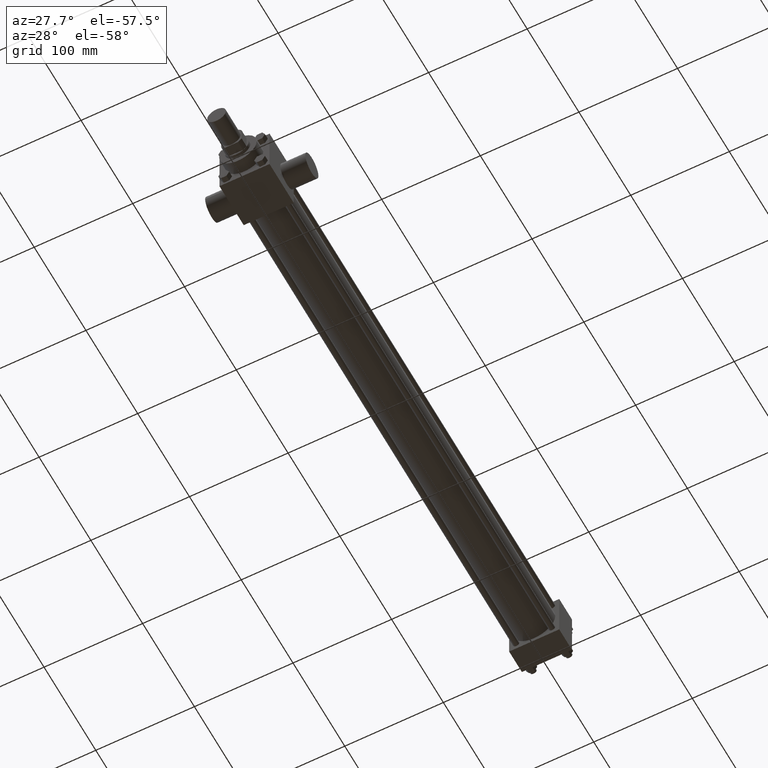
[diagram: clean part render]
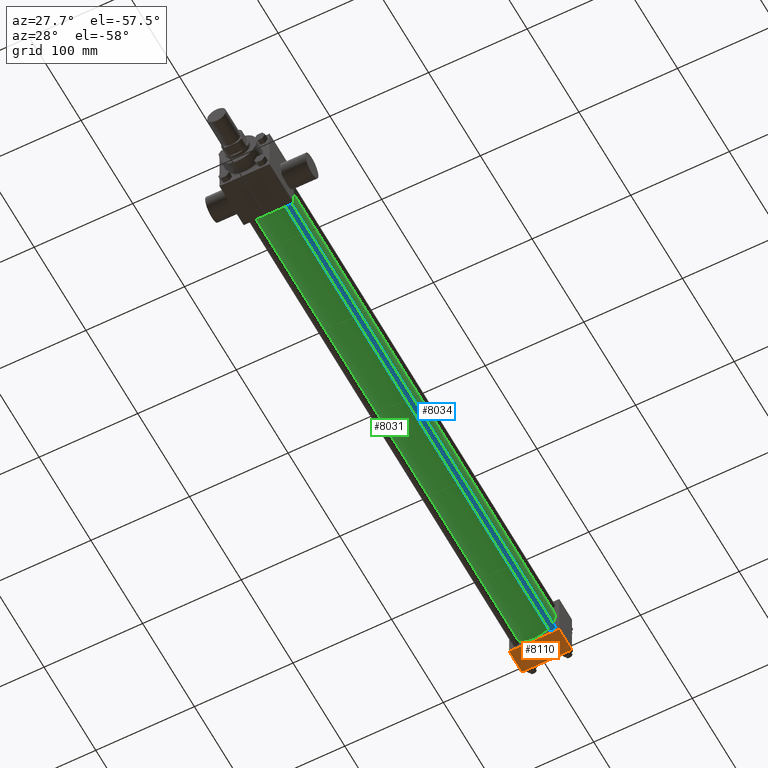
[diagram: same view with three faces highlighted in distinct colors, each labeled with its STEP entity id]
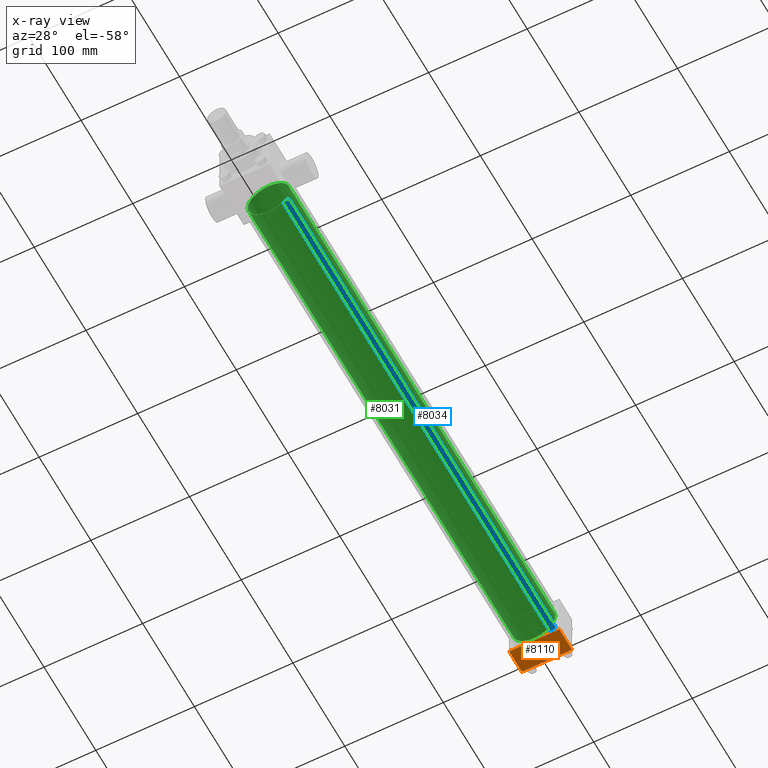
[diagram: x-ray of the same camera — body ghosted, the three highlighted faces saturated]
A machine part, auxiliary view with three faces highlighted in distinct colors.
The next image is the same camera in x-ray (body ghosted, the three faces saturated) — at least one of them is partly hidden behind the body in this view.
Their STEP definitions:

[orange] entity #8110 — the highlighted planar face has unit normal (0, 0, -1).
#4434=EDGE_CURVE('',#4439,#4440,#4435,.T.);
#4435=LINE('',#4436,#4437);
#4436=CARTESIAN_POINT('',(-2.540000000E+001,6.096000000E+002,-2.540000000E+001));
#4437=VECTOR('',#4438,1.0E+000);
#4438=DIRECTION('',(1.0E+000,0.0E+000,0.0E+000));
#4439=VERTEX_POINT('',#4441);
#4440=VERTEX_POINT('',#4442);
#4441=CARTESIAN_POINT('',(-2.540000000E+001,6.096000000E+002,-2.540000000E+001));
#4442=CARTESIAN_POINT('',(2.540000000E+001,6.096000000E+002,-2.540000000E+001));
#4607=EDGE_CURVE('',#4612,#4613,#4608,.T.);
#4608=LINE('',#4609,#4610);
#4609=CARTESIAN_POINT('',(-2.540000000E+001,5.849937500E+002,-2.540000000E+001));
#4610=VECTOR('',#4611,1.0E+000);
#4611=DIRECTION('',(1.0E+000,0.0E+000,0.0E+000));
#4612=VERTEX_POINT('',#4614);
#4613=VERTEX_POINT('',#4615);
#4614=CARTESIAN_POINT('',(-2.540000000E+001,5.849937500E+002,-2.540000000E+001));
#4615=CARTESIAN_POINT('',(2.540000000E+001,5.849937500E+002,-2.540000000E+001));
#4649=FACE_OUTER_BOUND('',#4651,.T.);
#4650=FACE_BOUND('',#4652,.T.);
#4651=EDGE_LOOP('',(#4653,#4654,#4655,#4656));
#4652=EDGE_LOOP('',(#4667));
#4653=ORIENTED_EDGE('',*,*,#4607,.F.);
#4654=ORIENTED_EDGE('',*,*,#4657,.F.);
#4655=ORIENTED_EDGE('',*,*,#4434,.T.);
#4656=ORIENTED_EDGE('',*,*,#4662,.T.);
#4657=EDGE_CURVE('',#4439,#4612,#4658,.T.);
#4658=LINE('',#4659,#4660);
#4659=CARTESIAN_POINT('',(-2.540000000E+001,6.096000000E+002,-2.540000000E+001));
#4660=VECTOR('',#4661,1.0E+000);
#4661=DIRECTION('',(0.0E+000,-1.0E+000,0.0E+000));
#4662=EDGE_CURVE('',#4440,#4613,#4663,.T.);
#4663=LINE('',#4664,#4665);
#4664=CARTESIAN_POINT('',(2.540000000E+001,6.096000000E+002,-2.540000000E+001));
#4665=VECTOR('',#4666,1.0E+000);
#4666=DIRECTION('',(0.0E+000,-1.0E+000,0.0E+000));
#4667=ORIENTED_EDGE('',*,*,#4668,.T.);
#4668=EDGE_CURVE('',#4674,#4674,#4669,.T.);
#4669=CIRCLE('',#4670,2.778125000E+000);
#4670=AXIS2_PLACEMENT_3D('',#4671,#4672,#4673);
#4671=CARTESIAN_POINT('',(0.000000000E+000,5.945187500E+002,-2.540000000E+001));
#4672=DIRECTION('',(0.0E+000,0.0E+000,1.0E+000));
#4673=DIRECTION('',(1.0E+000,0.0E+000,0.0E+000));
#4674=VERTEX_POINT('',#4675);
#4675=CARTESIAN_POINT('',(2.778125000E+000,5.945187500E+002,-2.540000000E+001));
#4676=PLANE('',#4677);
#4677=AXIS2_PLACEMENT_3D('',#4678,#4679,#4680);
#4678=CARTESIAN_POINT('',(-2.540000000E+001,6.096000000E+002,-2.540000000E+001));
#4679=DIRECTION('',(0.0E+000,0.0E+000,-1.0E+000));
#4680=DIRECTION('',(-1.0E+000,0.0E+000,0.0E+000));
#8110=ADVANCED_FACE('',(#4649,#4650),#4676,.T.);

[blue] entity #8034 — the highlighted cylindrical surface (bore or boss wall) has radius 3.175 mm, axis along (0, -1, 0).
#527=EDGE_CURVE('',#533,#533,#528,.T.);
#528=CIRCLE('',#529,3.175000000E+000);
#529=AXIS2_PLACEMENT_3D('',#530,#531,#532);
#530=CARTESIAN_POINT('',(1.816100000E+001,7.223125000E+001,-1.816100000E+001));
#531=DIRECTION('',(0.0E+000,1.0E+000,0.0E+000));
#532=DIRECTION('',(1.0E+000,0.0E+000,0.0E+000));
#533=VERTEX_POINT('',#534);
#534=CARTESIAN_POINT('',(2.133600000E+001,7.223125000E+001,-1.816100000E+001));
#2386=FACE_OUTER_BOUND('',#2388,.T.);
#2387=FACE_BOUND('',#2389,.T.);
#2388=EDGE_LOOP('',(#2390));
#2389=EDGE_LOOP('',(#2391));
#2390=ORIENTED_EDGE('',*,*,#2440,.F.);
#2391=ORIENTED_EDGE('',*,*,#527,.T.);
#2392=CYLINDRICAL_SURFACE('',#2393,3.175000000E+000);
#2393=AXIS2_PLACEMENT_3D('',#2394,#2395,#2396);
#2394=CARTESIAN_POINT('',(1.816100000E+001,5.849937500E+002,-1.816100000E+001));
#2395=DIRECTION('',(0.0E+000,-1.0E+000,0.0E+000));
#2396=DIRECTION('',(0.0E+000,0.0E+000,-1.0E+000));
#2440=EDGE_CURVE('',#2446,#2446,#2441,.T.);
#2441=CIRCLE('',#2442,3.175000000E+000);
#2442=AXIS2_PLACEMENT_3D('',#2443,#2444,#2445);
#2443=CARTESIAN_POINT('',(1.816100000E+001,5.849937500E+002,-1.816100000E+001));
#2444=DIRECTION('',(0.0E+000,1.0E+000,0.0E+000));
#2445=DIRECTION('',(1.0E+000,0.0E+000,0.0E+000));
#2446=VERTEX_POINT('',#2447);
#2447=CARTESIAN_POINT('',(2.133600000E+001,5.849937500E+002,-1.816100000E+001));
#8034=ADVANCED_FACE('',(#2386,#2387),#2392,.T.);

[green] entity #8031 — the highlighted cylindrical surface (bore or boss wall) has radius 21.463 mm, axis along (0, -1, 0).
#468=EDGE_CURVE('',#474,#474,#469,.T.);
#469=CIRCLE('',#470,2.146300000E+001);
#470=AXIS2_PLACEMENT_3D('',#471,#472,#473);
#471=CARTESIAN_POINT('',(0.000000000E+000,7.223125000E+001,0.000000000E+000));
#472=DIRECTION('',(0.0E+000,1.0E+000,0.0E+000));
#473=DIRECTION('',(1.0E+000,0.0E+000,0.0E+000));
#474=VERTEX_POINT('',#475);
#475=CARTESIAN_POINT('',(2.146300000E+001,7.223125000E+001,0.000000000E+000));
#2329=FACE_OUTER_BOUND('',#2331,.T.);
#2330=FACE_BOUND('',#2332,.T.);
#2331=EDGE_LOOP('',(#2333));
#2332=EDGE_LOOP('',(#2342));
#2333=ORIENTED_EDGE('',*,*,#2334,.F.);
#2334=EDGE_CURVE('',#2340,#2340,#2335,.T.);
#2335=CIRCLE('',#2336,2.146300000E+001);
#2336=AXIS2_PLACEMENT_3D('',#2337,#2338,#2339);
#2337=CARTESIAN_POINT('',(0.000000000E+000,5.849937500E+002,0.000000000E+000));
#2338=DIRECTION('',(0.0E+000,1.0E+000,0.0E+000));
#2339=DIRECTION('',(1.0E+000,0.0E+000,0.0E+000));
#2340=VERTEX_POINT('',#2341);
#2341=CARTESIAN_POINT('',(2.146300000E+001,5.849937500E+002,0.000000000E+000));
#2342=ORIENTED_EDGE('',*,*,#468,.T.);
#2343=CYLINDRICAL_SURFACE('',#2344,2.146300000E+001);
#2344=AXIS2_PLACEMENT_3D('',#2345,#2346,#2347);
#2345=CARTESIAN_POINT('',(0.000000000E+000,5.849937500E+002,0.000000000E+000));
#2346=DIRECTION('',(0.0E+000,-1.0E+000,0.0E+000));
#2347=DIRECTION('',(0.0E+000,0.0E+000,-1.0E+000));
#8031=ADVANCED_FACE('',(#2329,#2330),#2343,.T.);